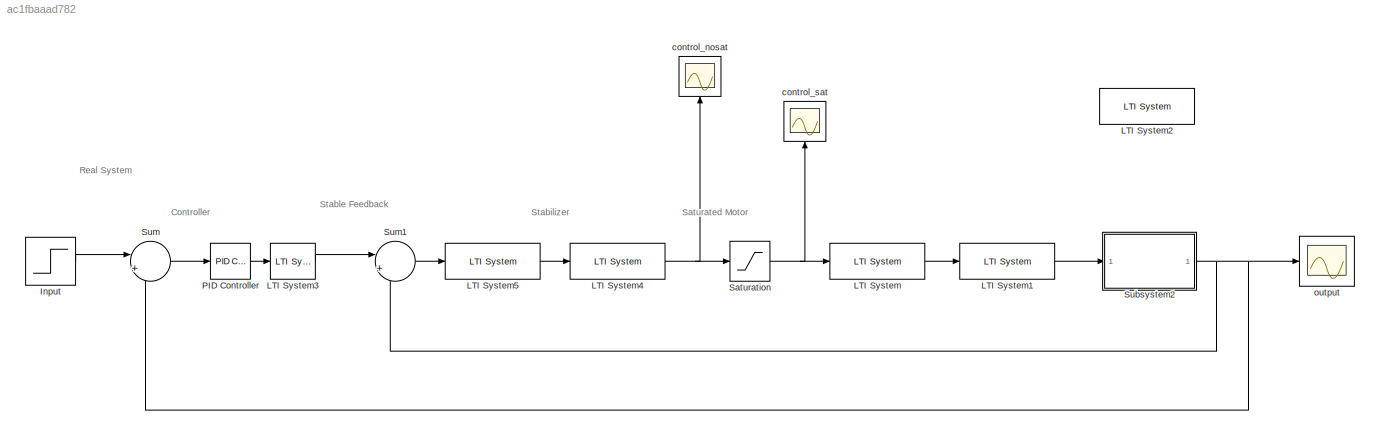
MODEL slx_ac1fbaaad782
KIND model
CONFIG AbsTol = auto
CONFIG EnableMultiTasking = off
CONFIG FixedStep = auto
CONFIG MaxStep = 0.1
CONFIG MinStep = auto
CONFIG RelTol = 1e-3
CONFIG SampleTimeConstraint = Unconstrained
CONFIG SolverName = VariableStepAuto
CONFIG StartTime = 0.0
CONFIG StopTime = 30
BLOCK [Step] Input
  After = 0.5
  SampleTime = 0
BLOCK [Reference] LTI System  REF=cstblocks/LTI System
  SourceBlock = cstblocks/LTI System
  SourceType = LTI Block
BLOCK [Reference] LTI System1  REF=cstblocks/LTI System
  SourceBlock = cstblocks/LTI System
  SourceType = LTI Block
BLOCK [Reference] LTI System2  REF=cstblocks/LTI System
  Commented = on
  SourceBlock = cstblocks/LTI System
  SourceType = LTI Block
BLOCK [Reference] LTI System3  REF=cstblocks/LTI System
  SourceBlock = cstblocks/LTI System
  SourceType = LTI Block
BLOCK [Reference] LTI System4  REF=cstblocks/LTI System
  SourceBlock = cstblocks/LTI System
  SourceType = LTI Block
BLOCK [Reference] LTI System5  REF=cstblocks/LTI System
  SourceBlock = cstblocks/LTI System
  SourceType = LTI Block
BLOCK [Reference] PID Controller  REF=slpidlib/PID Controller
  LibrarySourceBlock = simulink/Continuous/PID Controller
  SourceBlock = slpidlib/PID Controller
  SourceType = PID 1dof
BLOCK [Saturate] Saturation
  LowerLimit = -15
  UpperLimit = 15
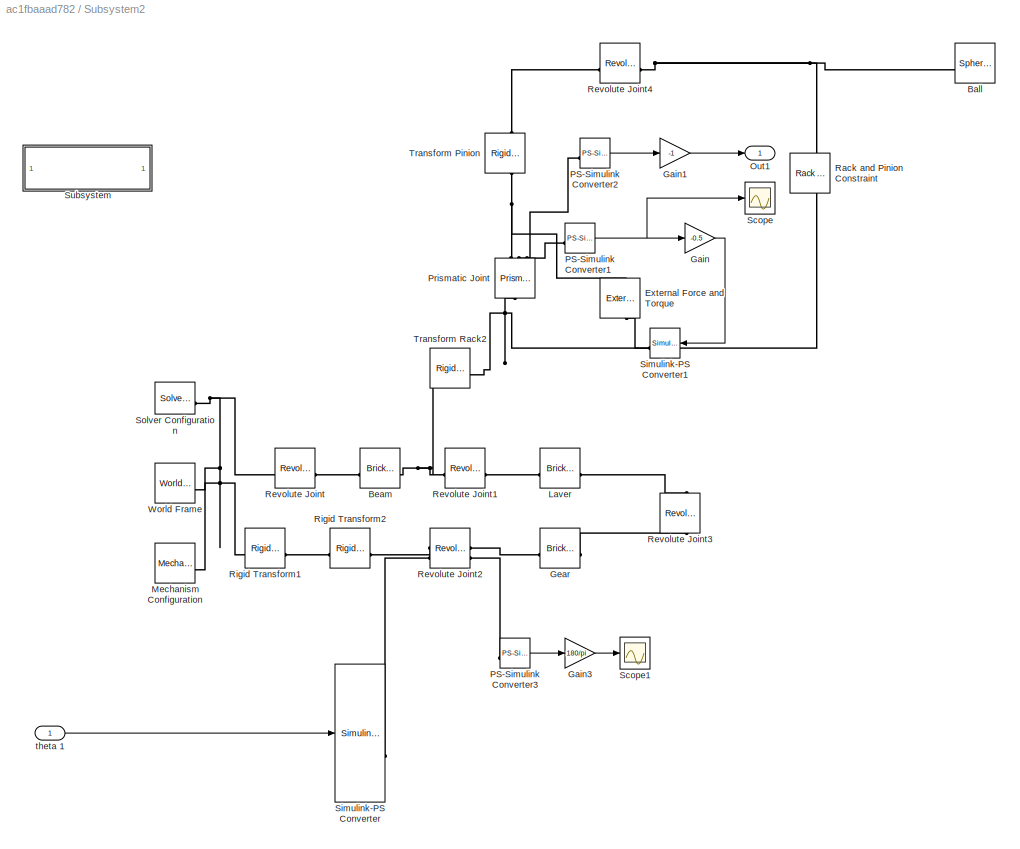
BLOCK [SubSystem] Subsystem2
BLOCK [Reference] Subsystem2/Ball  REF=sm_lib/Body Elements/Spherical Solid
  SourceBlock = sm_lib/Body Elements/Spherical Solid
  SourceType = Spherical Solid
BLOCK [Reference] Subsystem2/Beam  REF=sm_lib/Body Elements/Brick Solid
  NameLocation = top
  SourceBlock = sm_lib/Body Elements/Brick Solid
  SourceType = Brick Solid
BLOCK [Reference] Subsystem2/External Force and Torque  REF=sm_lib/Forces and
Torques/External Force
and Torque
  NameLocation = right
  SourceBlock = sm_lib/Forces and\nTorques/External Force\nand Torque
  SourceType = External Force\nand Torque
BLOCK [Gain] Subsystem2/Gain
  Gain = -0.5
BLOCK [Gain] Subsystem2/Gain1
  Gain = -1
BLOCK [Gain] Subsystem2/Gain3
  Gain = 180/pi
BLOCK [Reference] Subsystem2/Gear  REF=sm_lib/Body Elements/Brick Solid
  SourceBlock = sm_lib/Body Elements/Brick Solid
  SourceType = Brick Solid
BLOCK [Reference] Subsystem2/Laver  REF=sm_lib/Body Elements/Brick Solid
  SourceBlock = sm_lib/Body Elements/Brick Solid
  SourceType = Brick Solid
BLOCK [Reference] Subsystem2/Mechanism Configuration  REF=sm_lib/Utilities/Mechanism
Configuration
  SourceBlock = sm_lib/Utilities/Mechanism\nConfiguration
  SourceType = Mechanism\nConfiguration
BLOCK [Outport] Subsystem2/Out1
BLOCK [Reference] Subsystem2/PS-Simulink Converter1  REF=nesl_utility/PS-Simulink
Converter
  SourceBlock = nesl_utility/PS-Simulink\nConverter
  SourceType = PS-Simulink\nConverter
BLOCK [Reference] Subsystem2/PS-Simulink Converter2  REF=nesl_utility/PS-Simulink
Converter
  SourceBlock = nesl_utility/PS-Simulink\nConverter
  SourceType = PS-Simulink\nConverter
BLOCK [Reference] Subsystem2/PS-Simulink Converter3  REF=nesl_utility/PS-Simulink
Converter
  SourceBlock = nesl_utility/PS-Simulink\nConverter
  SourceType = PS-Simulink\nConverter
BLOCK [Reference] Subsystem2/Prismatic Joint  REF=sm_lib/Joints/Prismatic
Joint
  NameLocation = left
  SourceBlock = sm_lib/Joints/Prismatic\nJoint
  SourceType = Prismatic\nJoint
BLOCK [Reference] Subsystem2/Rack and Pinion Constraint  REF=sm_lib/Gears and
Couplings/Gears/Rack and Pinion
Constraint
  NameLocation = right
  SourceBlock = sm_lib/Gears and\nCouplings/Gears/Rack and Pinion\nConstraint
  SourceType = Rack and Pinion\nConstraint
BLOCK [Reference] Subsystem2/Revolute Joint  REF=sm_lib/Joints/Revolute Joint
  SourceBlock = sm_lib/Joints/Revolute Joint
  SourceType = Revolute Joint
BLOCK [Reference] Subsystem2/Revolute Joint1  REF=sm_lib/Joints/Revolute Joint
  SourceBlock = sm_lib/Joints/Revolute Joint
  SourceType = Revolute Joint
BLOCK [Reference] Subsystem2/Revolute Joint2  REF=sm_lib/Joints/Revolute Joint
  SourceBlock = sm_lib/Joints/Revolute Joint
  SourceType = Revolute Joint
BLOCK [Reference] Subsystem2/Revolute Joint3  REF=sm_lib/Joints/Revolute Joint
  NameLocation = left
  SourceBlock = sm_lib/Joints/Revolute Joint
  SourceType = Revolute Joint
BLOCK [Reference] Subsystem2/Revolute Joint4  REF=sm_lib/Joints/Revolute Joint
  SourceBlock = sm_lib/Joints/Revolute Joint
  SourceType = Revolute Joint
BLOCK [Reference] Subsystem2/Rigid Transform1  REF=sm_lib/Frames and
Transforms/Rigid
Transform
  SourceBlock = sm_lib/Frames and\nTransforms/Rigid\nTransform
  SourceType = Rigid\nTransform
BLOCK [Reference] Subsystem2/Rigid Transform2  REF=sm_lib/Frames and
Transforms/Rigid
Transform
  SourceBlock = sm_lib/Frames and\nTransforms/Rigid\nTransform
  SourceType = Rigid\nTransform
BLOCK [Scope] Subsystem2/Scope
  Floating = off
  NumInputPorts = 1
  ScopeSpecificationString = C++SS(StrPVP('Open','off'),StrPVP('TimeRange','auto'),StrPVP('TickLabels','OneTimeTick'),StrPVP('ShowLegends','off'),StrPVP('LimitDataPoints','off'),StrPVP('MaxDataPoints','5000'),StrPVP('SaveToWorkspace','off'),StrPVP('SaveName','ScopeData'),StrPVP('YMin','-0.09445'),StrPVP('YMax','-0.00347'),StrPVP('BlockParamSampleInput','off'),StrPVP('BlockParamSampleTime','-1'),StrPVP('ZoomMode','on'),StrPVP(...<+581ch>
BLOCK [Scope] Subsystem2/Scope1
  Floating = off
  NumInputPorts = 1
  ScopeSpecificationString = C++SS(StrPVP('Open','off'),StrPVP('TimeRange','auto'),StrPVP('TickLabels','OneTimeTick'),StrPVP('ShowLegends','off'),StrPVP('LimitDataPoints','off'),StrPVP('MaxDataPoints','5000'),StrPVP('SaveToWorkspace','off'),StrPVP('SaveName','ScopeData1'),StrPVP('YMin','-1.66483'),StrPVP('YMax','6.08356'),StrPVP('BlockParamSampleInput','off'),StrPVP('BlockParamSampleTime','-1'),StrPVP('ZoomMode','on'),StrPVP(...<+581ch>
BLOCK [Reference] Subsystem2/Simulink-PS Converter  REF=nesl_utility/Simulink-PS
Converter
  SourceBlock = nesl_utility/Simulink-PS\nConverter
  SourceType = Simulink-PS\nConverter
BLOCK [Reference] Subsystem2/Simulink-PS Converter1  REF=nesl_utility/Simulink-PS
Converter
  NameLocation = top
  SourceBlock = nesl_utility/Simulink-PS\nConverter
  SourceType = Simulink-PS\nConverter
BLOCK [Reference] Subsystem2/Solver Configuration  REF=nesl_utility/Solver
Configuration
  SourceBlock = nesl_utility/Solver\nConfiguration
  SourceType = Solver\nConfiguration
BLOCK [SubSystem] Subsystem2/Subsystem
  OpenFcn = open_system('sm_lib')
  ShowPortLabels = none
BLOCK [Reference] Subsystem2/Transform Pinion  REF=sm_lib/Frames and
Transforms/Rigid
Transform
  NameLocation = left
  SourceBlock = sm_lib/Frames and\nTransforms/Rigid\nTransform
  SourceType = Rigid\nTransform
BLOCK [Reference] Subsystem2/Transform Rack2  REF=sm_lib/Frames and
Transforms/Rigid
Transform
  SourceBlock = sm_lib/Frames and\nTransforms/Rigid\nTransform
  SourceType = Rigid\nTransform
BLOCK [Reference] Subsystem2/World Frame  REF=sm_lib/Frames and
Transforms/World Frame
  SourceBlock = sm_lib/Frames and\nTransforms/World Frame
  SourceType = World Frame
BLOCK [Inport] Subsystem2/theta 1
BLOCK [Sum] Sum
  Inputs = |+-
BLOCK [Sum] Sum1
  Inputs = |+-
BLOCK [Scope] control_nosat
  Floating = off
  NameLocation = right
  NumInputPorts = 1
  ScopeSpecificationString = Simulink.scopes.TimeScopeBlockCfg('CurrentConfiguration', extmgr.ConfigurationSet(extmgr.Configuration('Core','General UI',true),extmgr.Configuration('Core','Source UI',true),extmgr.Configuration('Sources','WiredSimulink',true,'DataLoggingVariableName','ScopeData1'),extmgr.Configuration('Visuals','Time Domain',true,'SerializedDisplays',{struct('MinYLimReal','-6.10135','MaxYLimReal','21.16798','YLa...<+1408ch>
BLOCK [Scope] control_sat
  Floating = off
  NameLocation = right
  NumInputPorts = 1
  ScopeSpecificationString = Simulink.scopes.TimeScopeBlockCfg('CurrentConfiguration', extmgr.ConfigurationSet(extmgr.Configuration('Core','General UI',true),extmgr.Configuration('Core','Source UI',true),extmgr.Configuration('Sources','WiredSimulink',true,'DataLoggingVariableName','ScopeData2'),extmgr.Configuration('Visuals','Time Domain',true,'SerializedDisplays',{struct('MinYLimReal','-5.67122','MaxYLimReal','17.2968','YLab...<+1438ch>
BLOCK [Scope] output
  Floating = off
  NumInputPorts = 1
  ScopeSpecificationString = Simulink.scopes.TimeScopeBlockCfg('CurrentConfiguration', extmgr.ConfigurationSet(extmgr.Configuration('Core','General UI',true),extmgr.Configuration('Core','Source UI',true),extmgr.Configuration('Sources','WiredSimulink',true),extmgr.Configuration('Visuals','Time Domain',true,'SerializedDisplays',{struct('MinYLimReal','-0.06409','MaxYLimReal','0.5768','YLabelReal','','MinYLimMag','0.00000','MaxYL...<+1376ch>
ANNOTATION (root): Controller
ANNOTATION (root): Real System
ANNOTATION (root): Saturated Motor
ANNOTATION (root): Stabilizer
ANNOTATION (root): Stable Feedback
LINE Input:1 -> Sum:1
LINE LTI System1:1 -> Subsystem2:1
LINE LTI System3:1 -> Sum1:1
NET LTI System4:1 -> Saturation:1, control_nosat:1
LINE LTI System5:1 -> LTI System4:1
LINE LTI System:1 -> LTI System1:1
LINE PID Controller:1 -> LTI System3:1
NET Saturation:1 -> LTI System:1, control_sat:1
LINE Subsystem2/Gain1:1 -> Subsystem2/Out1:1
LINE Subsystem2/Gain3:1 -> Subsystem2/Scope1:1
LINE Subsystem2/Gain:1 -> Subsystem2/Simulink-PS Converter1:1
NET Subsystem2/PS-Simulink Converter1:1 -> Subsystem2/Gain:1, Subsystem2/Scope:1
LINE Subsystem2/PS-Simulink Converter2:1 -> Subsystem2/Gain1:1
LINE Subsystem2/PS-Simulink Converter3:1 -> Subsystem2/Gain3:1
LINE Subsystem2/theta 1:1 -> Subsystem2/Simulink-PS Converter:1
NET Subsystem2:1 -> Sum1:2, Sum:2, output:1
LINE Sum1:1 -> LTI System5:1
LINE Sum:1 -> PID Controller:1
PNET net1: Subsystem2/Ball:RConn1 -- Subsystem2/Rack and Pinion Constraint:LConn1 -- Subsystem2/Revolute Joint4:RConn1
PNET net2: Subsystem2/Beam:LConn1 -- Subsystem2/Revolute Joint1:LConn1 -- Subsystem2/Transform Rack2:LConn1
PLINE Subsystem2/Beam:RConn1 -- Subsystem2/Revolute Joint:RConn1
PLINE Subsystem2/External Force and Torque:LConn1 -- Subsystem2/Simulink-PS Converter1:RConn1
PNET net3: Subsystem2/External Force and Torque:RConn1 -- Subsystem2/Prismatic Joint:RConn1 -- Subsystem2/Transform Pinion:LConn1
PLINE Subsystem2/Gear:LConn1 -- Subsystem2/Revolute Joint2:RConn1
PLINE Subsystem2/Gear:RConn1 -- Subsystem2/Revolute Joint3:RConn1
PLINE Subsystem2/Laver:LConn1 -- Subsystem2/Revolute Joint1:RConn1
PLINE Subsystem2/Laver:RConn1 -- Subsystem2/Revolute Joint3:LConn1
PNET net4: Subsystem2/Mechanism Configuration:RConn1 -- Subsystem2/Revolute Joint:LConn1 -- Subsystem2/Rigid Transform1:LConn1 -- Subsystem2/Solver Configuration:RConn1 -- Subsystem2/World Frame:RConn1
PLINE Subsystem2/PS-Simulink Converter1:LConn1 -- Subsystem2/Prismatic Joint:RConn3
PLINE Subsystem2/PS-Simulink Converter2:LConn1 -- Subsystem2/Prismatic Joint:RConn2
PLINE Subsystem2/PS-Simulink Converter3:LConn1 -- Subsystem2/Revolute Joint2:RConn2
PNET net5: Subsystem2/Prismatic Joint:LConn1 -- Subsystem2/Rack and Pinion Constraint:RConn1 -- Subsystem2/Transform Rack2:RConn1
PLINE Subsystem2/Revolute Joint2:LConn1 -- Subsystem2/Rigid Transform2:RConn1
PLINE Subsystem2/Revolute Joint2:LConn2 -- Subsystem2/Simulink-PS Converter:RConn1
PLINE Subsystem2/Revolute Joint4:LConn1 -- Subsystem2/Transform Pinion:RConn1
PLINE Subsystem2/Rigid Transform1:RConn1 -- Subsystem2/Rigid Transform2:LConn1
note: NET lines group one-source signal fan-out (src -> all destinations, sorted); 1:1 wires keep LINE; PNET lines group multi-terminal physical nets as a canonical sorted terminal list (undirected conserving connections); 2-terminal nets keep the pairwise PLINE form
